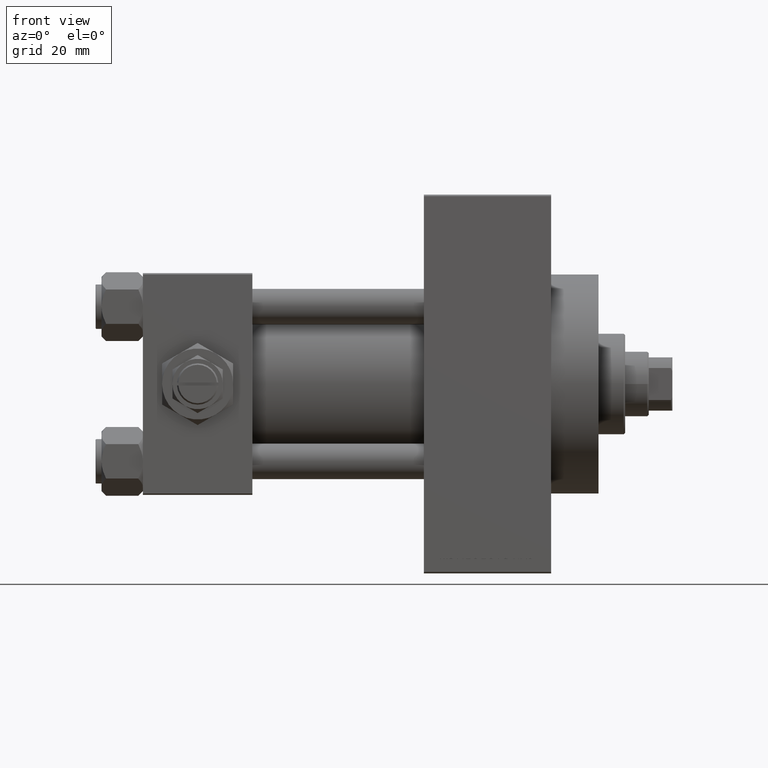
[diagram: clean part render]
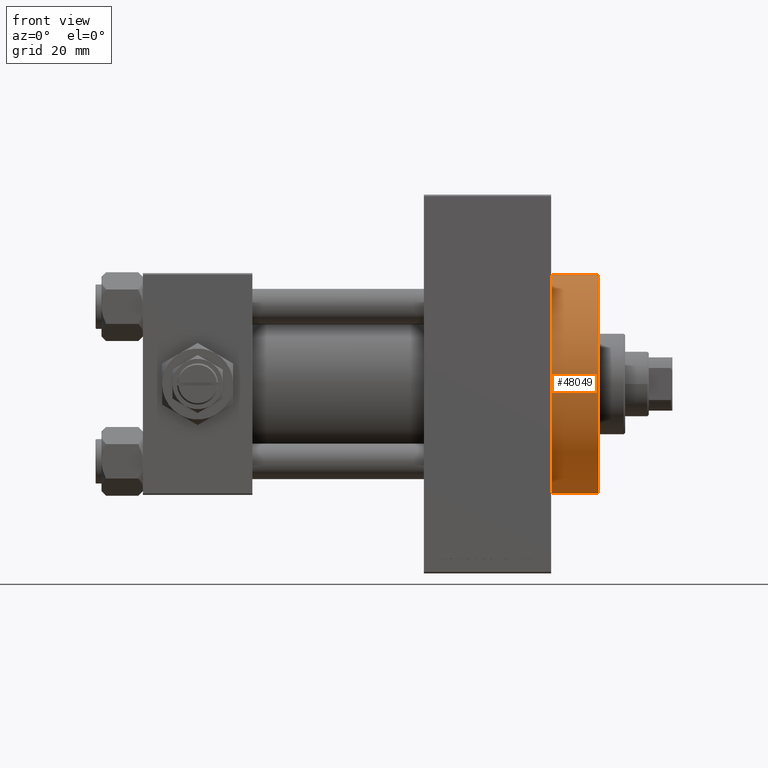
[diagram: same view with one face highlighted and labeled with its STEP entity id]
A machine part, front view. The second image highlights one B-rep face of the part: STEP entity #48049.
In plain terms, the highlighted cylindrical surface (partial cylindrical patch) has radius 37 mm, axis along (-1, -0, -0).
Its self-contained STEP definition (entity closure, byte-faithful):
#15 = DIRECTION ( 'NONE',  ( -1.000000000000000000, -0.000000000000000000, -0.000000000000000000 ) ) ;
#931 = DIRECTION ( 'NONE',  ( 1.000000000000000000, 0.000000000000000000, 0.000000000000000000 ) ) ;
#4123 = CARTESIAN_POINT ( 'NONE',  ( 154.0000000000000284, 4.531193156845206793E-15, -37.00000000000000000 ) ) ;
#4147 = CARTESIAN_POINT ( 'NONE',  ( 138.0000000000000000, 0.000000000000000000, 0.000000000000000000 ) ) ;
#4310 = CARTESIAN_POINT ( 'NONE',  ( 138.0000000000000000, 4.531193156845206793E-15, -37.00000000000000000 ) ) ;
#5143 = AXIS2_PLACEMENT_3D ( 'NONE', #26862, #38406, #8175 ) ;
#5867 = CARTESIAN_POINT ( 'NONE',  ( 154.0000000000000284, 0.000000000000000000, 37.00000000000000000 ) ) ;
#6426 = EDGE_CURVE ( 'NONE', #47883, #45600, #40827, .T. ) ;
#6725 = AXIS2_PLACEMENT_3D ( 'NONE', #4147, #931, #23535 ) ;
#6795 = VERTEX_POINT ( 'NONE', #4123 ) ;
#7118 = DIRECTION ( 'NONE',  ( -1.000000000000000000, -0.000000000000000000, -0.000000000000000000 ) ) ;
#8014 = ORIENTED_EDGE ( 'NONE', *, *, #20083, .F. ) ;
#8175 = DIRECTION ( 'NONE',  ( 0.000000000000000000, 0.000000000000000000, 1.000000000000000000 ) ) ;
#10729 = CARTESIAN_POINT ( 'NONE',  ( 154.0000000000000284, 0.000000000000000000, 37.00000000000000000 ) ) ;
#11317 = CARTESIAN_POINT ( 'NONE',  ( 154.0000000000000284, 4.531193156845206793E-15, -37.00000000000000000 ) ) ;
#11689 = VECTOR ( 'NONE', #15, 1000.000000000000000 ) ;
#11853 = CYLINDRICAL_SURFACE ( 'NONE', #5143, 37.00000000000000000 ) ;
#12008 = CARTESIAN_POINT ( 'NONE',  ( 154.0000000000000284, 0.000000000000000000, 0.000000000000000000 ) ) ;
#15140 = EDGE_CURVE ( 'NONE', #45600, #47622, #43647, .T. ) ;
#18685 = LINE ( 'NONE', #11317, #11689 ) ;
#19289 = CIRCLE ( 'NONE', #26380, 37.00000000000000000 ) ;
#20083 = EDGE_CURVE ( 'NONE', #47883, #6795, #19289, .T. ) ;
#21382 = ORIENTED_EDGE ( 'NONE', *, *, #15140, .T. ) ;
#23535 = DIRECTION ( 'NONE',  ( 0.000000000000000000, 0.000000000000000000, -1.000000000000000000 ) ) ;
#24495 = VECTOR ( 'NONE', #7118, 1000.000000000000000 ) ;
#26380 = AXIS2_PLACEMENT_3D ( 'NONE', #12008, #42751, #38804 ) ;
#26862 = CARTESIAN_POINT ( 'NONE',  ( 154.0000000000000284, 0.000000000000000000, 0.000000000000000000 ) ) ;
#28349 = EDGE_CURVE ( 'NONE', #6795, #47622, #18685, .T. ) ;
#30024 = ORIENTED_EDGE ( 'NONE', *, *, #28349, .F. ) ;
#35460 = ORIENTED_EDGE ( 'NONE', *, *, #6426, .T. ) ;
#38406 = DIRECTION ( 'NONE',  ( -1.000000000000000000, -0.000000000000000000, -0.000000000000000000 ) ) ;
#38804 = DIRECTION ( 'NONE',  ( 0.000000000000000000, 0.000000000000000000, -1.000000000000000000 ) ) ;
#39588 = EDGE_LOOP ( 'NONE', ( #30024, #8014, #35460, #21382 ) ) ;
#40827 = LINE ( 'NONE', #10729, #24495 ) ;
#42751 = DIRECTION ( 'NONE',  ( 1.000000000000000000, 0.000000000000000000, 0.000000000000000000 ) ) ;
#43647 = CIRCLE ( 'NONE', #6725, 37.00000000000000000 ) ;
#44280 = CARTESIAN_POINT ( 'NONE',  ( 138.0000000000000000, 0.000000000000000000, 37.00000000000000000 ) ) ;
#45572 = FACE_OUTER_BOUND ( 'NONE', #39588, .T. ) ;
#45600 = VERTEX_POINT ( 'NONE', #44280 ) ;
#47622 = VERTEX_POINT ( 'NONE', #4310 ) ;
#47883 = VERTEX_POINT ( 'NONE', #5867 ) ;
#48049 = ADVANCED_FACE ( 'NONE', ( #45572 ), #11853, .T. ) ;